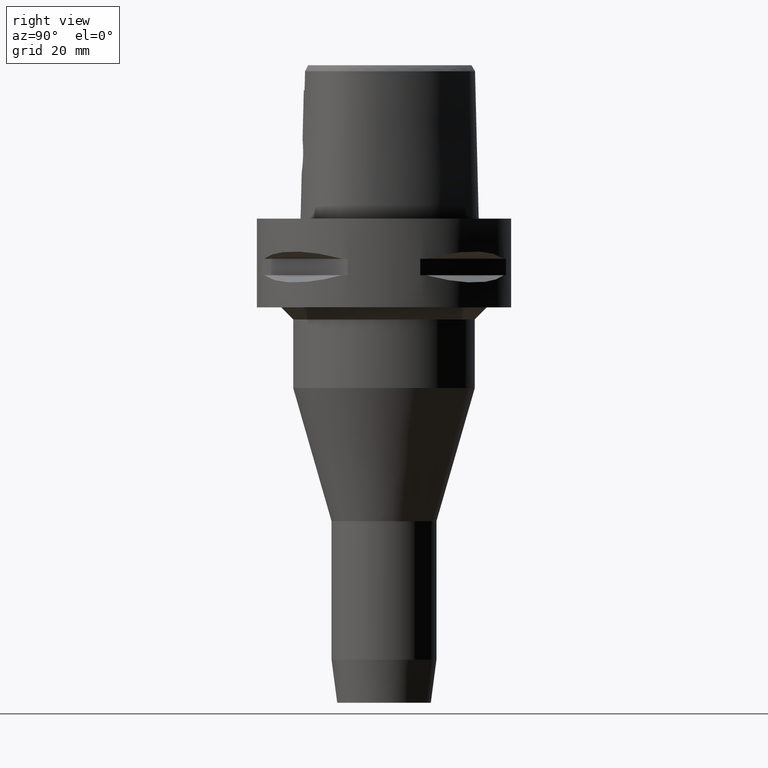
[diagram: clean part render]
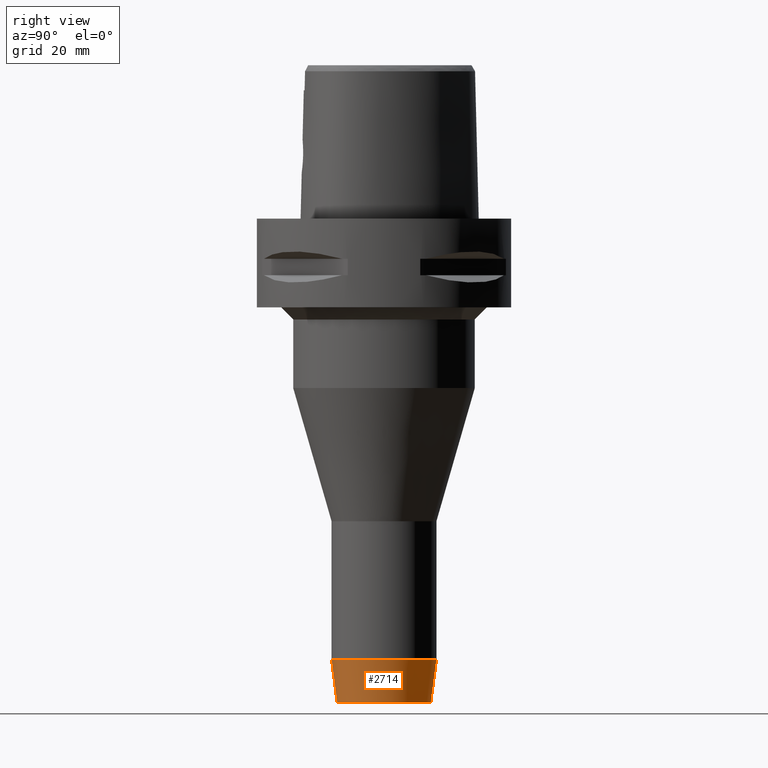
[diagram: same view with one face highlighted and labeled with its STEP entity id]
A machine part, right view. The second image highlights one B-rep face of the part: STEP entity #2714.
In plain terms, the highlighted conical surface has half-angle 7.5 deg.
Its self-contained STEP definition (entity closure, byte-faithful):
#686=DIRECTION('',(0.E0,1.305261922198E-1,-9.914448613738E-1));
#687=VECTOR('',#686,1.075646179609E1);
#688=CARTESIAN_POINT('',(0.E0,-1.3E1,-1.093355612257E2));
#689=LINE('',#688,#687);
#693=DIRECTION('',(0.E0,-1.305261922198E-1,-9.914448613738E-1));
#694=VECTOR('',#693,1.075646179609E1);
#695=CARTESIAN_POINT('',(0.E0,1.3E1,-1.093355612257E2));
#696=LINE('',#695,#694);
#700=CARTESIAN_POINT('',(0.E0,0.E0,-1.093355612257E2));
#701=DIRECTION('',(0.E0,0.E0,1.E0));
#702=DIRECTION('',(0.E0,-1.E0,0.E0));
#703=AXIS2_PLACEMENT_3D('',#700,#701,#702);
#708=CARTESIAN_POINT('',(0.E0,0.E0,-1.2E2));
#709=DIRECTION('',(0.E0,0.E0,1.E0));
#710=DIRECTION('',(0.E0,-1.E0,0.E0));
#711=AXIS2_PLACEMENT_3D('',#708,#709,#710);
#1684=CARTESIAN_POINT('',(0.E0,1.3E1,-1.093355612257E2));
#1685=VERTEX_POINT('',#1684);
#1686=CARTESIAN_POINT('',(0.E0,-1.300000000001E1,-1.093355612257E2));
#1687=VERTEX_POINT('',#1686);
#1688=CARTESIAN_POINT('',(0.E0,1.1596E1,-1.2E2));
#1689=VERTEX_POINT('',#1688);
#1690=CARTESIAN_POINT('',(0.E0,-1.1596E1,-1.2E2));
#1691=VERTEX_POINT('',#1690);
#2702=CARTESIAN_POINT('',(0.E0,0.E0,-1.146677806129E2));
#2703=DIRECTION('',(0.E0,0.E0,1.E0));
#2704=DIRECTION('',(0.E0,1.E0,0.E0));
#2705=AXIS2_PLACEMENT_3D('',#2702,#2703,#2704);
#2706=CONICAL_SURFACE('',#2705,1.229800000001E1,7.5E0);
#2707=ORIENTED_EDGE('',*,*,#2692,.T.);
#2709=ORIENTED_EDGE('',*,*,#2708,.F.);
#2710=ORIENTED_EDGE('',*,*,#2695,.F.);
#2711=ORIENTED_EDGE('',*,*,#2666,.T.);
#2712=EDGE_LOOP('',(#2707,#2709,#2710,#2711));
#2713=FACE_OUTER_BOUND('',#2712,.F.);
#704=CIRCLE('',#703,1.300000000001E1);
#712=CIRCLE('',#711,1.1596E1);
#2666=EDGE_CURVE('',#1687,#1685,#704,.T.);
#2692=EDGE_CURVE('',#1685,#1689,#696,.T.);
#2695=EDGE_CURVE('',#1687,#1691,#689,.T.);
#2708=EDGE_CURVE('',#1691,#1689,#712,.T.);
#2714=ADVANCED_FACE('',(#2713),#2706,.T.);